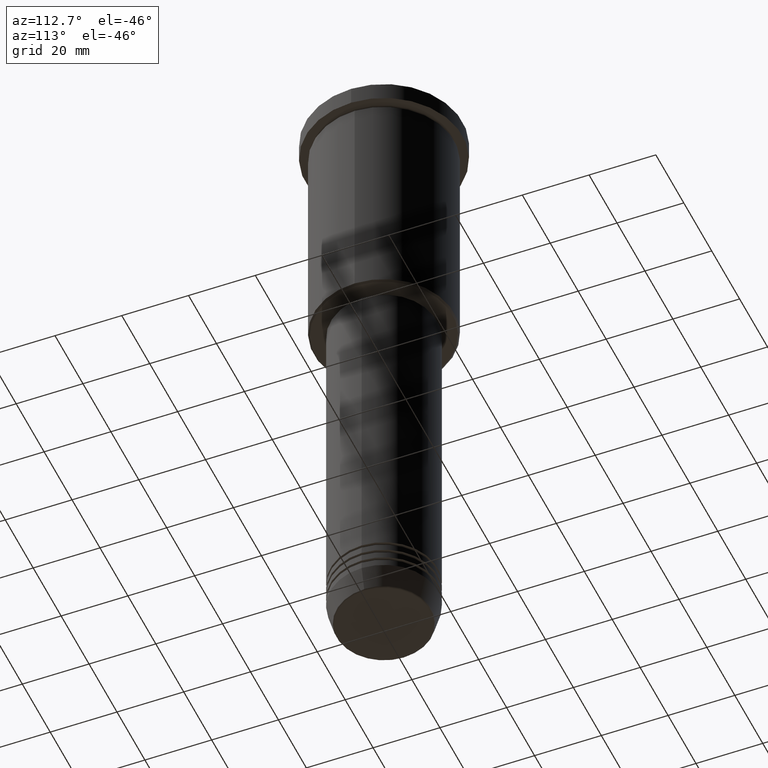
[diagram: clean part render]
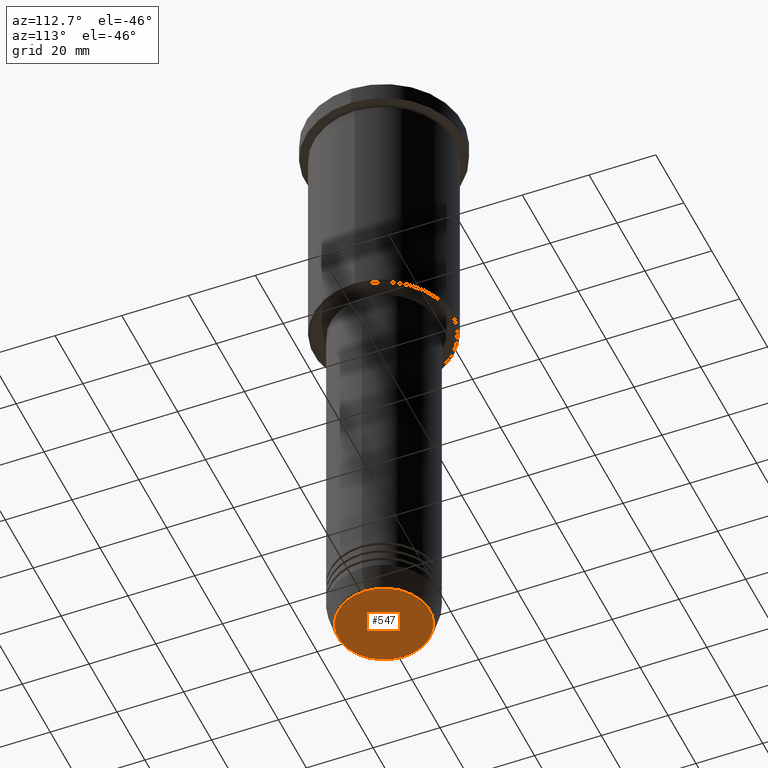
[diagram: same view with one face highlighted and labeled with its STEP entity id]
A machine part, auxiliary view. The second image highlights one B-rep face of the part: STEP entity #547.
In plain terms, the highlighted planar face has unit normal (0, -0, 1).
Its self-contained STEP definition (entity closure, byte-faithful):
#46 = DIRECTION ( 'NONE',  ( 1.000000000000000000, 0.000000000000000000, 0.000000000000000000 ) ) ;
#74 = EDGE_CURVE ( 'NONE', #113, #613, #670, .T. ) ;
#113 = VERTEX_POINT ( 'NONE', #922 ) ;
#150 = DIRECTION ( 'NONE',  ( 0.000000000000000000, 0.000000000000000000, -1.000000000000000000 ) ) ;
#202 = CIRCLE ( 'NONE', #712, 13.74069215899266538 ) ;
#312 = FACE_OUTER_BOUND ( 'NONE', #405, .T. ) ;
#336 = DIRECTION ( 'NONE',  ( 1.000000000000000000, 0.000000000000000000, 0.000000000000000000 ) ) ;
#405 = EDGE_LOOP ( 'NONE', ( #1004, #499 ) ) ;
#441 = DIRECTION ( 'NONE',  ( 0.000000000000000000, 0.000000000000000000, -1.000000000000000000 ) ) ;
#499 = ORIENTED_EDGE ( 'NONE', *, *, #74, .T. ) ;
#505 = DIRECTION ( 'NONE',  ( 0.000000000000000000, -0.000000000000000000, 1.000000000000000000 ) ) ;
#547 = ADVANCED_FACE ( 'NONE', ( #312 ), #970, .F. ) ;
#613 = VERTEX_POINT ( 'NONE', #837 ) ;
#615 = CARTESIAN_POINT ( 'NONE',  ( 0.000000000000000000, 0.000000000000000000, -191.0000000000000000 ) ) ;
#670 = CIRCLE ( 'NONE', #978, 13.74069215899266538 ) ;
#671 = AXIS2_PLACEMENT_3D ( 'NONE', #615, #505, #699 ) ;
#697 = EDGE_CURVE ( 'NONE', #613, #113, #202, .T. ) ;
#699 = DIRECTION ( 'NONE',  ( 1.000000000000000000, 0.000000000000000000, 0.000000000000000000 ) ) ;
#712 = AXIS2_PLACEMENT_3D ( 'NONE', #1165, #441, #336 ) ;
#837 = CARTESIAN_POINT ( 'NONE',  ( 13.74069215899266538, 0.000000000000000000, -191.0000000000000000 ) ) ;
#883 = CARTESIAN_POINT ( 'NONE',  ( 0.000000000000000000, 0.000000000000000000, -191.0000000000000000 ) ) ;
#922 = CARTESIAN_POINT ( 'NONE',  ( -13.74069215899266538, 1.712322416342416577E-15, -191.0000000000000000 ) ) ;
#970 = PLANE ( 'NONE',  #671 ) ;
#978 = AXIS2_PLACEMENT_3D ( 'NONE', #883, #150, #46 ) ;
#1004 = ORIENTED_EDGE ( 'NONE', *, *, #697, .T. ) ;
#1165 = CARTESIAN_POINT ( 'NONE',  ( 0.000000000000000000, 0.000000000000000000, -191.0000000000000000 ) ) ;